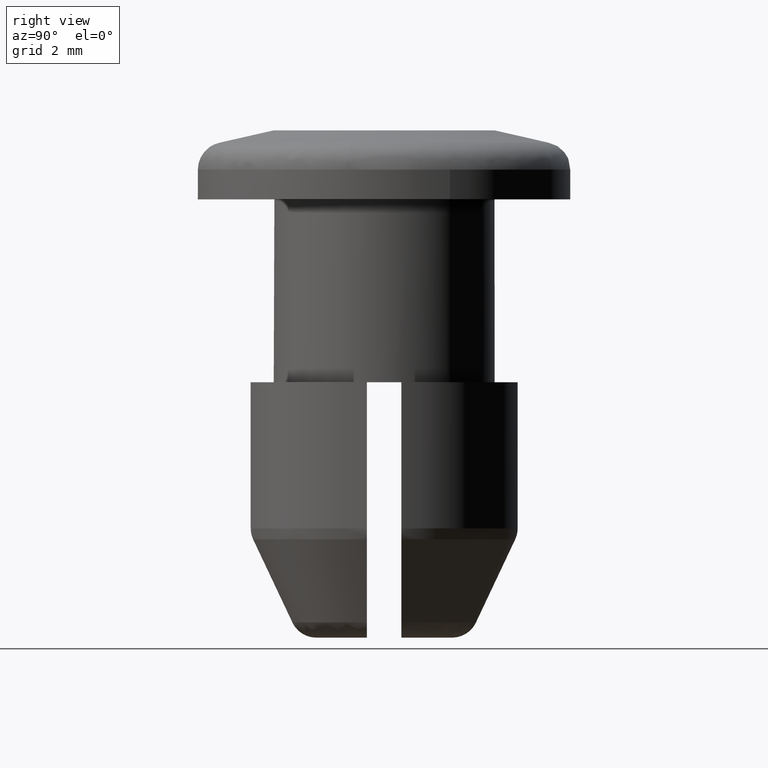
[diagram: clean part render]
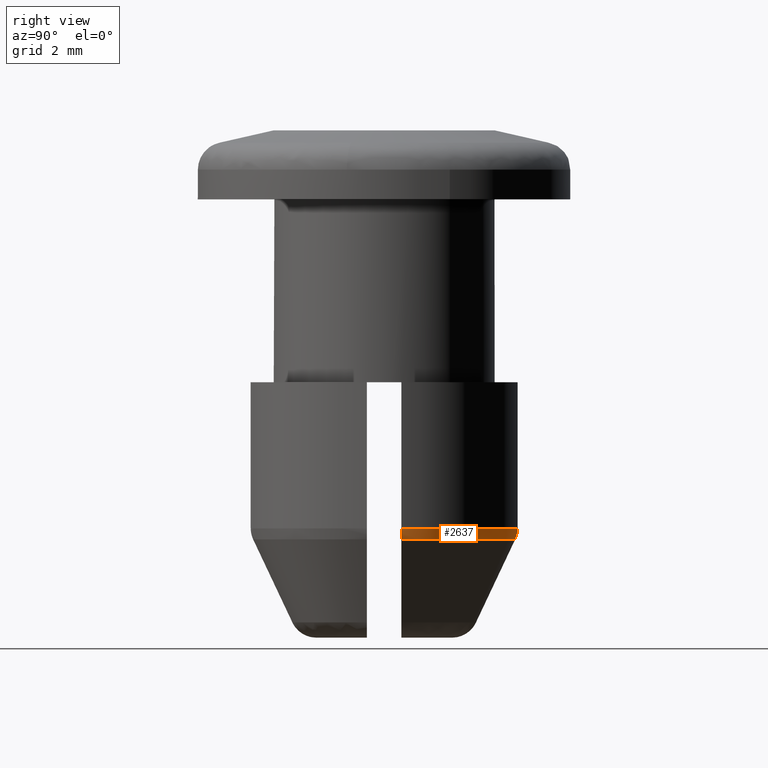
[diagram: same view with one face highlighted and labeled with its STEP entity id]
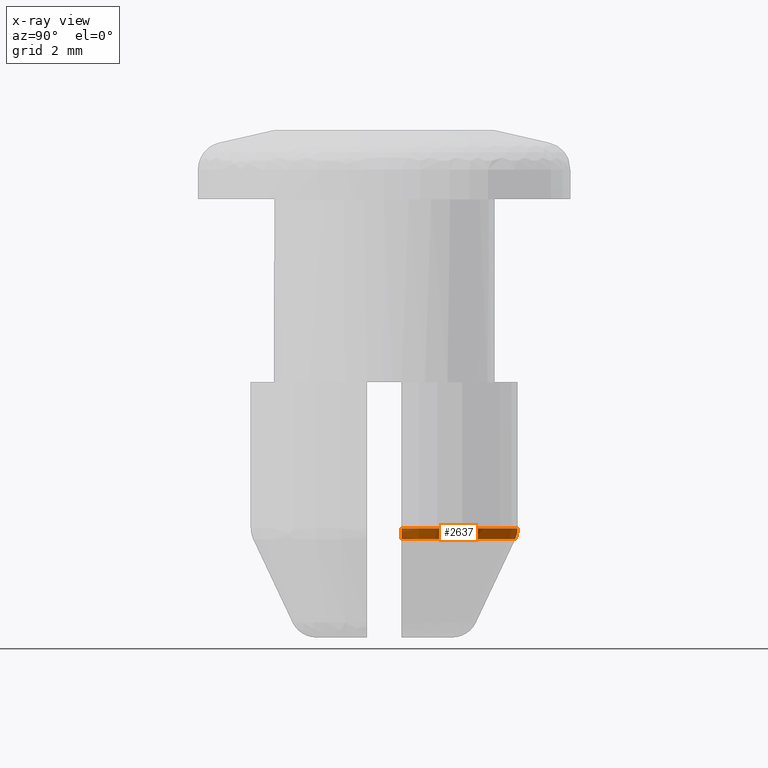
[diagram: x-ray of the same camera — body ghosted, the highlighted face saturated]
A machine part, right view. The second image highlights one B-rep face of the part: STEP entity #2637.
The next image is the same camera in x-ray: the body ghosted, the highlighted face saturated — about 0% of this face is hidden behind the body in this view.
In plain terms, the highlighted face is a freeform B-spline surface patch.
Its self-contained STEP definition (entity closure, byte-faithful):
#1469=CARTESIAN_POINT('',(3.867815921162730,0.500000000000007,-11.533899999999999));
#1470=VERTEX_POINT('',#1469);
#1535=CARTESIAN_POINT('',(3.796920079485480,0.500000000000007,-11.850999999999880));
#1536=VERTEX_POINT('',#1535);
#1544=CARTESIAN_POINT('',(3.796920079485509,0.500000000000007,-11.850999999999891));
#1545=CARTESIAN_POINT('',(3.820125297994604,0.500000000000007,-11.801702191895901));
#1546=CARTESIAN_POINT('',(3.837839464490057,0.500000000000007,-11.750220786712839));
#1547=CARTESIAN_POINT('',(3.861895604854124,0.500000000000007,-11.642735657756241));
#1548=CARTESIAN_POINT('',(3.867832769548371,0.500000000000007,-11.588334337714850));
#1549=CARTESIAN_POINT('',(3.867815921162730,0.500000000000007,-11.533899999999999));
#1550=B_SPLINE_CURVE_WITH_KNOTS('',3,(#1544,#1545,#1546,#1547,#1548,#1549),.UNSPECIFIED.,.F.,.U.,(4,2,4),(0.0,0.500000000000000,1.0),.UNSPECIFIED.);
#1551=EDGE_CURVE('',#1536,#1470,#1550,.T.);
#1575=CARTESIAN_POINT('',(0.500000000000007,3.867815921162735,-11.533899999999999));
#1576=VERTEX_POINT('',#1575);
#1582=CARTESIAN_POINT('',(0.500000000000007,3.796920079485480,-11.850999999999880));
#1583=VERTEX_POINT('',#1582);
#1584=CARTESIAN_POINT('',(0.500000000000007,3.867815921162735,-11.533899999999999));
#1585=CARTESIAN_POINT('',(0.500000000000007,3.867824375213507,-11.561213635033679));
#1586=CARTESIAN_POINT('',(0.500000000000007,3.866303222617463,-11.588821802136611));
#1587=CARTESIAN_POINT('',(0.500000000000007,3.860291073186096,-11.643092316151369));
#1588=CARTESIAN_POINT('',(0.500000000000007,3.851334723579372,-11.696699840835590));
#1589=CARTESIAN_POINT('',(0.500000000000007,3.836602319753384,-11.749006685507640));
#1590=CARTESIAN_POINT('',(0.500000000000007,3.818934154054537,-11.800652441027211));
#1591=CARTESIAN_POINT('',(0.500000000000007,3.808557584684812,-11.826276962037500));
#1592=CARTESIAN_POINT('',(0.500000000000007,3.796920079485483,-11.850999999999880));
#1593=B_SPLINE_CURVE_WITH_KNOTS('',3,(#1584,#1585,#1586,#1587,#1588,#1589,#1590,#1591,#1592),.UNSPECIFIED.,.F.,.U.,(4,2,1,2,4),(0.0,0.250000000000000,0.500000000000000,0.750000000000000,1.0),.UNSPECIFIED.);
#1594=EDGE_CURVE('',#1576,#1583,#1593,.T.);
#2487=CARTESIAN_POINT('',(0.500000000000007,3.796920079485476,-11.850999999999880));
#2488=CARTESIAN_POINT('',(3.413282495064743,3.413282495064741,-11.850999999999878));
#2489=CARTESIAN_POINT('',(3.796920079485476,0.500000000000006,-11.850999999999880));
#2497=(BOUNDED_CURVE()B_SPLINE_CURVE(2,(#2487,#2488,#2489),.UNSPECIFIED.,.F.,.U.)CURVE()GEOMETRIC_REPRESENTATION_ITEM()QUASI_UNIFORM_CURVE()RATIONAL_B_SPLINE_CURVE((1.0,0.793373195399332,1.0))REPRESENTATION_ITEM(''));
#2498=EDGE_CURVE('',#1583,#1536,#2497,.T.);
#2602=CARTESIAN_POINT('',(0.265777821379078,3.890752548115557,-11.517689285228487));
#2603=CARTESIAN_POINT('',(3.658963667020850,3.658963574019585,-11.517689285228492));
#2604=CARTESIAN_POINT('',(3.890752554870930,0.265777722486347,-11.517689285228492));
#2605=CARTESIAN_POINT('',(0.266052135254068,3.894768260948792,-11.701086133237503));
#2606=CARTESIAN_POINT('',(3.662740146550783,3.662740053453530,-11.701086133237505));
#2607=CARTESIAN_POINT('',(3.894768267711138,0.266052036259268,-11.701086133237501));
#2608=CARTESIAN_POINT('',(0.260521538100973,3.813805203706655,-11.865600573073152));
#2609=CARTESIAN_POINT('',(3.586600407218509,3.586600316056527,-11.865600573073159));
#2610=CARTESIAN_POINT('',(3.813805210328430,0.260521441164042,-11.865600573073161));
#2618=(BOUNDED_SURFACE()B_SPLINE_SURFACE(2,2,((#2602,#2605,#2608),(#2603,#2606,#2609),(#2604,#2607,#2610)),.UNSPECIFIED.,.F.,.F.,.U.)B_SPLINE_SURFACE_WITH_KNOTS((3,3),(3,3),(0.0,5.846639549150370),(0.0,0.361543244811860),.UNSPECIFIED.)GEOMETRIC_REPRESENTATION_ITEM()RATIONAL_B_SPLINE_SURFACE(((0.874615980687459,0.849990996500101,0.875572067740730),(0.659156961991165,0.640598268662396,0.659877519871823),(0.874615989019473,0.849991004597525,0.875572076081852)))REPRESENTATION_ITEM('')SURFACE());
#2619=ORIENTED_EDGE('',*,*,#1551,.F.);
#2620=ORIENTED_EDGE('',*,*,#2498,.F.);
#2621=ORIENTED_EDGE('',*,*,#1594,.F.);
#2622=CARTESIAN_POINT('',(0.500000000000008,3.867815921162742,-11.533899999999999));
#2623=CARTESIAN_POINT('',(3.482289609849437,3.482289609849439,-11.533899999999999));
#2624=CARTESIAN_POINT('',(3.867815921162742,0.500000000000009,-11.533899999999999));
#2632=(BOUNDED_CURVE()B_SPLINE_CURVE(2,(#2622,#2623,#2624),.UNSPECIFIED.,.F.,.U.)CURVE()GEOMETRIC_REPRESENTATION_ITEM()QUASI_UNIFORM_CURVE()RATIONAL_B_SPLINE_CURVE((1.0,0.791926219699679,1.0))REPRESENTATION_ITEM(''));
#2633=EDGE_CURVE('',#1576,#1470,#2632,.T.);
#2634=ORIENTED_EDGE('',*,*,#2633,.T.);
#2635=EDGE_LOOP('',(#2619,#2620,#2621,#2634));
#2636=FACE_OUTER_BOUND('',#2635,.T.);
#2637=ADVANCED_FACE('',(#2636),#2618,.T.);